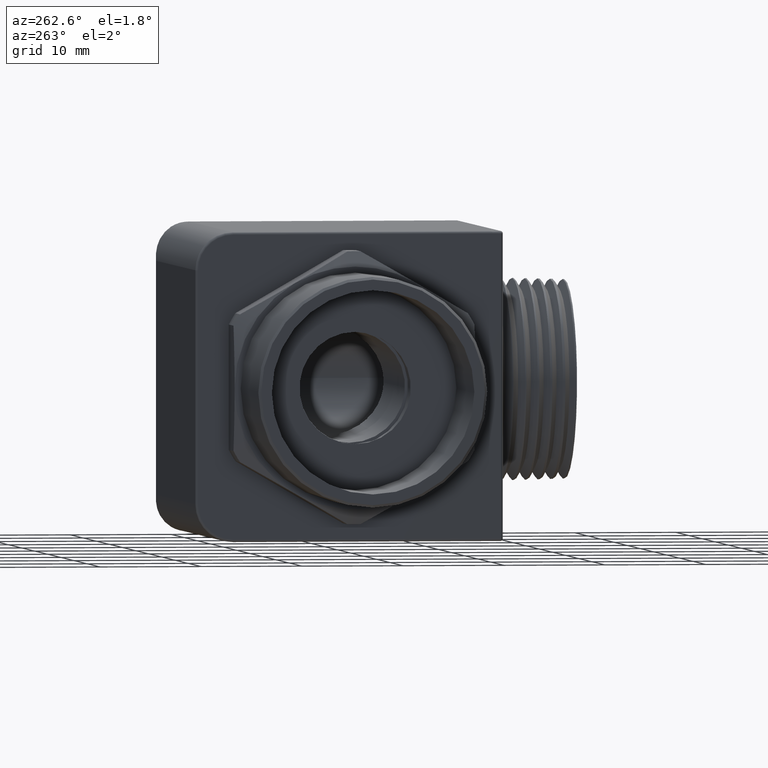
[diagram: clean part render]
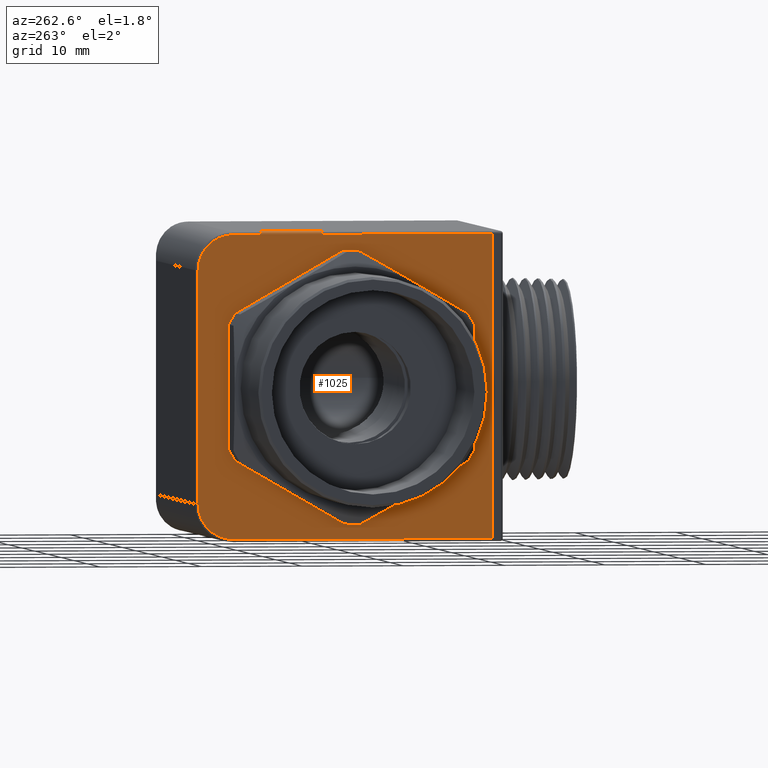
[diagram: same view with one face highlighted and labeled with its STEP entity id]
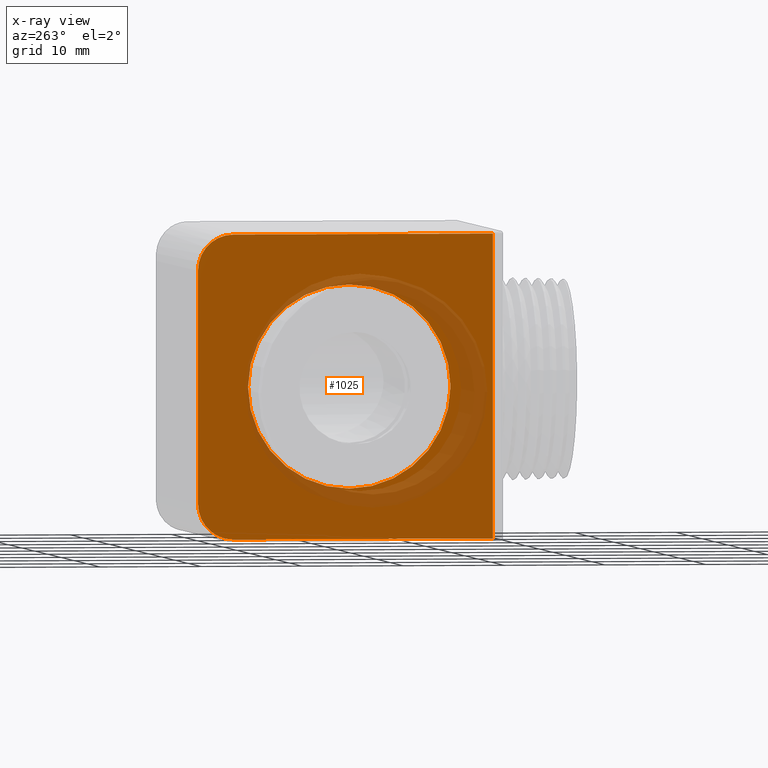
[diagram: x-ray of the same camera — body ghosted, the highlighted face saturated]
A machine part, auxiliary view. The second image highlights one B-rep face of the part: STEP entity #1025.
The next image is the same camera in x-ray: the body ghosted, the highlighted face saturated — about 17% of this face is hidden behind the body in this view.
In plain terms, the highlighted planar face has unit normal (1, 0, 0).
Its self-contained STEP definition (entity closure, byte-faithful):
#91 = VERTEX_POINT ( 'NONE', #1290 ) ;
#92 = EDGE_CURVE ( 'NONE', #3603, #91, #1289, .T. ) ;
#113 = EDGE_CURVE ( 'NONE', #133, #3585, #1295, .T. ) ;
#133 = VERTEX_POINT ( 'NONE', #1374 ) ;
#1008 = EDGE_CURVE ( 'NONE', #1033, #1009, #2964, .T. ) ;
#1009 = VERTEX_POINT ( 'NONE', #2959 ) ;
#1010 = ORIENTED_EDGE ( 'NONE', *, *, #1011, .T. ) ;
#1011 = EDGE_CURVE ( 'NONE', #1009, #1012, #2958, .T. ) ;
#1012 = VERTEX_POINT ( 'NONE', #2954 ) ;
#1013 = ORIENTED_EDGE ( 'NONE', *, *, #1014, .T. ) ;
#1014 = EDGE_CURVE ( 'NONE', #1012, #1029, #2952, .T. ) ;
#1015 = EDGE_LOOP ( 'NONE', ( #1016, #1017 ) ) ;
#1016 = ORIENTED_EDGE ( 'NONE', *, *, #113, .T. ) ;
#1017 = ORIENTED_EDGE ( 'NONE', *, *, #3587, .T. ) ;
#1025 = ADVANCED_FACE ( 'NONE', ( #2988, #2987 ), #2986, .F. ) ;
#1026 = EDGE_LOOP ( 'NONE', ( #1027, #1030, #1031, #1034, #1010, #1013 ) ) ;
#1027 = ORIENTED_EDGE ( 'NONE', *, *, #1028, .T. ) ;
#1028 = EDGE_CURVE ( 'NONE', #1029, #3603, #2981, .T. ) ;
#1029 = VERTEX_POINT ( 'NONE', #2977 ) ;
#1030 = ORIENTED_EDGE ( 'NONE', *, *, #92, .T. ) ;
#1031 = ORIENTED_EDGE ( 'NONE', *, *, #1032, .T. ) ;
#1032 = EDGE_CURVE ( 'NONE', #91, #1033, #2976, .T. ) ;
#1033 = VERTEX_POINT ( 'NONE', #2972 ) ;
#1034 = ORIENTED_EDGE ( 'NONE', *, *, #1008, .T. ) ;
#1281 = DIRECTION ( 'NONE',  ( 0.0000000000000000000, 0.0000000000000000000, 1.000000000000000000 ) ) ;
#1282 = VECTOR ( 'NONE', #1281, 39.37007874015748100 ) ;
#1283 = CARTESIAN_POINT ( 'NONE',  ( -0.3498999999999999300, -0.5600000000000058300, 0.5999999999999999800 ) ) ;
#1289 = LINE ( 'NONE', #1283, #1282 ) ;
#1290 = CARTESIAN_POINT ( 'NONE',  ( -0.3498999999999999300, -0.5600000000000058300, 0.5899999999999999700 ) ) ;
#1291 = DIRECTION ( 'NONE',  ( 0.0000000000000000000, 0.0000000000000000000, -1.000000000000000000 ) ) ;
#1292 = DIRECTION ( 'NONE',  ( 1.000000000000000000, 0.0000000000000000000, 0.0000000000000000000 ) ) ;
#1293 = CARTESIAN_POINT ( 'NONE',  ( -0.3498999999999998200, 0.0000000000000000000, 0.0000000000000000000 ) ) ;
#1294 = AXIS2_PLACEMENT_3D ( 'NONE', #1293, #1292, #1291 ) ;
#1295 = CIRCLE ( 'NONE', #1294, 0.3949973814078430200 ) ;
#1374 = CARTESIAN_POINT ( 'NONE',  ( -0.3498999999999998200, 0.0000000000000000000, 0.3949973814078430200 ) ) ;
#2951 = AXIS2_PLACEMENT_3D ( 'NONE', #3005, #3004, #3003 ) ;
#2952 = CIRCLE ( 'NONE', #2951, 0.1375000000000000400 ) ;
#2954 = CARTESIAN_POINT ( 'NONE',  ( -0.3498999999999999300, 0.5899999999999999700, -0.4524999999999999600 ) ) ;
#2955 = DIRECTION ( 'NONE',  ( 0.0000000000000000000, 0.0000000000000000000, -1.000000000000000000 ) ) ;
#2956 = VECTOR ( 'NONE', #2955, 39.37007874015748100 ) ;
#2957 = CARTESIAN_POINT ( 'NONE',  ( -0.3498999999999999300, 0.5899999999999999700, 0.5999999999999999800 ) ) ;
#2958 = LINE ( 'NONE', #2957, #2956 ) ;
#2959 = CARTESIAN_POINT ( 'NONE',  ( -0.3498999999999999300, 0.5899999999999999700, 0.4524999999999999600 ) ) ;
#2960 = DIRECTION ( 'NONE',  ( 0.0000000000000000000, 0.0000000000000000000, -1.000000000000000000 ) ) ;
#2961 = DIRECTION ( 'NONE',  ( -1.000000000000000000, 0.0000000000000000000, 0.0000000000000000000 ) ) ;
#2962 = CARTESIAN_POINT ( 'NONE',  ( -0.3498999999999999300, 0.4524999999999999600, 0.4524999999999999600 ) ) ;
#2963 = AXIS2_PLACEMENT_3D ( 'NONE', #2962, #2961, #2960 ) ;
#2964 = CIRCLE ( 'NONE', #2963, 0.1375000000000000400 ) ;
#2972 = CARTESIAN_POINT ( 'NONE',  ( -0.3498999999999999300, 0.4524999999999999600, 0.5899999999999999700 ) ) ;
#2973 = DIRECTION ( 'NONE',  ( 0.0000000000000000000, 1.000000000000000000, 0.0000000000000000000 ) ) ;
#2974 = VECTOR ( 'NONE', #2973, 39.37007874015748100 ) ;
#2975 = CARTESIAN_POINT ( 'NONE',  ( -0.3498999999999999300, -0.5599999999999999400, 0.5899999999999999700 ) ) ;
#2976 = LINE ( 'NONE', #2975, #2974 ) ;
#2977 = CARTESIAN_POINT ( 'NONE',  ( -0.3498999999999999300, 0.4524999999999999600, -0.5899999999999999700 ) ) ;
#2978 = DIRECTION ( 'NONE',  ( 0.0000000000000000000, -1.000000000000000000, 0.0000000000000000000 ) ) ;
#2979 = VECTOR ( 'NONE', #2978, 39.37007874015748100 ) ;
#2980 = CARTESIAN_POINT ( 'NONE',  ( -0.3498999999999999300, -0.6000000000000002000, -0.5899999999999999700 ) ) ;
#2981 = LINE ( 'NONE', #2980, #2979 ) ;
#2982 = DIRECTION ( 'NONE',  ( 0.0000000000000000000, 0.0000000000000000000, -1.000000000000000000 ) ) ;
#2983 = DIRECTION ( 'NONE',  ( 1.000000000000000000, 0.0000000000000000000, 0.0000000000000000000 ) ) ;
#2984 = CARTESIAN_POINT ( 'NONE',  ( -0.3498999999999999300, -0.5599999999999999400, 0.5999999999999999800 ) ) ;
#2985 = AXIS2_PLACEMENT_3D ( 'NONE', #2984, #2983, #2982 ) ;
#2986 = PLANE ( 'NONE',  #2985 ) ;
#2987 = FACE_BOUND ( 'NONE', #1015, .T. ) ;
#2988 = FACE_OUTER_BOUND ( 'NONE', #1026, .T. ) ;
#3003 = DIRECTION ( 'NONE',  ( 0.0000000000000000000, 0.0000000000000000000, -1.000000000000000000 ) ) ;
#3004 = DIRECTION ( 'NONE',  ( -1.000000000000000000, 0.0000000000000000000, 0.0000000000000000000 ) ) ;
#3005 = CARTESIAN_POINT ( 'NONE',  ( -0.3498999999999999300, 0.4524999999999999600, -0.4524999999999999600 ) ) ;
#3225 = CARTESIAN_POINT ( 'NONE',  ( -0.3498999999999998200, 4.837338822379529200E-017, -0.3949973814078430200 ) ) ;
#3258 = DIRECTION ( 'NONE',  ( 0.0000000000000000000, 0.0000000000000000000, -1.000000000000000000 ) ) ;
#3259 = DIRECTION ( 'NONE',  ( 1.000000000000000000, 0.0000000000000000000, 0.0000000000000000000 ) ) ;
#3260 = AXIS2_PLACEMENT_3D ( 'NONE', #3266, #3259, #3258 ) ;
#3261 = CIRCLE ( 'NONE', #3260, 0.3949973814078430200 ) ;
#3266 = CARTESIAN_POINT ( 'NONE',  ( -0.3498999999999998200, 0.0000000000000000000, 0.0000000000000000000 ) ) ;
#3292 = CARTESIAN_POINT ( 'NONE',  ( -0.3498999999999999300, -0.5600000000000058300, -0.5899999999999999700 ) ) ;
#3585 = VERTEX_POINT ( 'NONE', #3225 ) ;
#3587 = EDGE_CURVE ( 'NONE', #3585, #133, #3261, .T. ) ;
#3603 = VERTEX_POINT ( 'NONE', #3292 ) ;